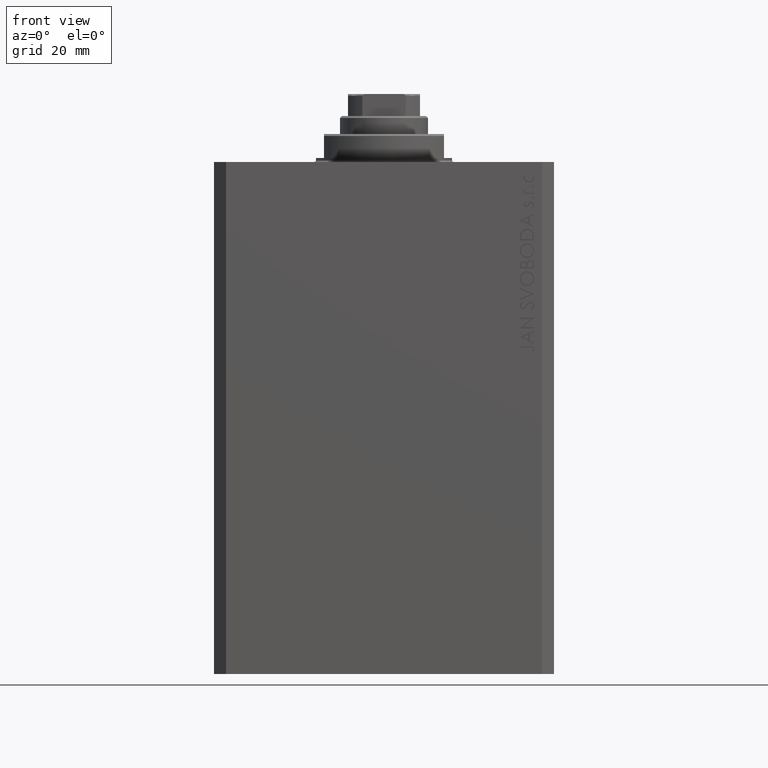
[diagram: clean part render]
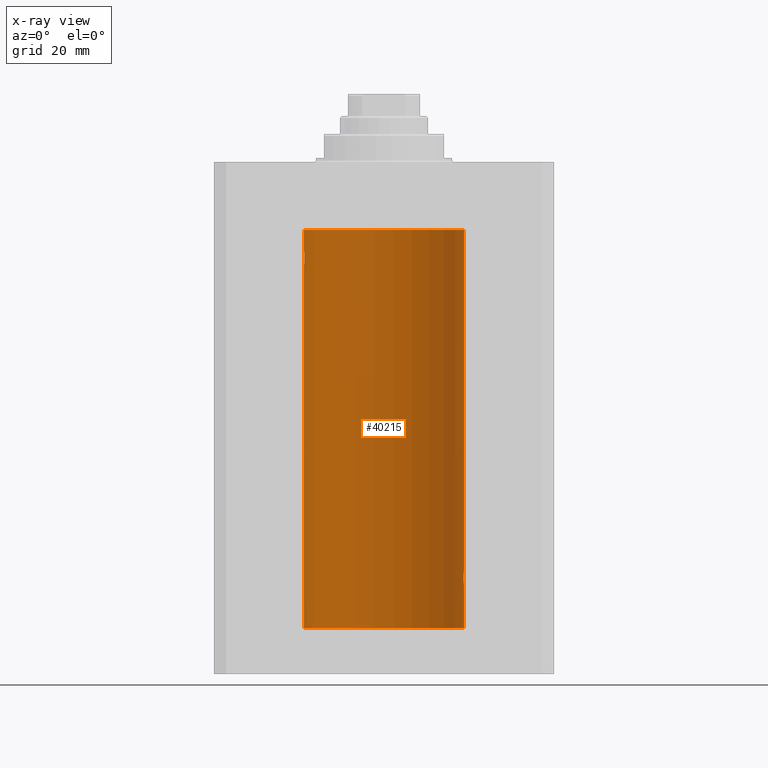
[diagram: x-ray — body ghosted, one internal face saturated and labeled with its STEP entity id]
A machine part, front view, then the same camera in x-ray: the body is ghosted and one INTERNAL B-rep face — a face not visible from any outside direction — is saturated and labeled: STEP entity #40215.
In plain terms, the highlighted cylindrical surface (partial cylindrical patch) has radius 20 mm, axis along (0, 0, 1).
Its self-contained STEP definition (entity closure, byte-faithful):
#26 = DIRECTION ( 'NONE',  ( -0.000000000000000000, -0.000000000000000000, 1.000000000000000000 ) ) ;
#36 = DIRECTION ( 'NONE',  ( -0.000000000000000000, -0.000000000000000000, 1.000000000000000000 ) ) ;
#178 = CARTESIAN_POINT ( 'NONE',  ( 20.00000000000000000, -1.553109350199128042E-23, -102.0000000000000142 ) ) ;
#252 = CARTESIAN_POINT ( 'NONE',  ( 19.89974874213236333, 2.000000000000336620, -104.0000000000000142 ) ) ;
#698 = CARTESIAN_POINT ( 'NONE',  ( 0.000000000000000000, 0.000000000000000000, -116.5999999999999943 ) ) ;
#1204 = CARTESIAN_POINT ( 'NONE',  ( -20.00000000000000000, 2.449293598294706513E-15, -116.5999999999999943 ) ) ;
#1322 = VECTOR ( 'NONE', #26, 1000.000000000000000 ) ;
#1610 = CARTESIAN_POINT ( 'NONE',  ( -19.90106552791689154, 1.987020435121076734, -24.26241417820002155 ) ) ;
#2384 = CARTESIAN_POINT ( 'NONE',  ( -20.00000000000000000, 2.449293598294706513E-15, -17.00000000000000000 ) ) ;
#4577 = ORIENTED_EDGE ( 'NONE', *, *, #26175, .T. ) ;
#4645 = EDGE_CURVE ( 'NONE', #10605, #12003, #43173, .T. ) ;
#4947 = CARTESIAN_POINT ( 'NONE',  ( -19.93679350243183990, 1.590453176650918676, -25.21960275349743696 ) ) ;
#5168 = LINE ( 'NONE', #23562, #15980 ) ;
#5183 = CARTESIAN_POINT ( 'NONE',  ( -20.00000000000000000, -1.269718202421245235E-16, -22.00000000000000000 ) ) ;
#5494 = CARTESIAN_POINT ( 'NONE',  ( 19.89974874213236689, 2.000000000000336620, -103.8694898374175750 ) ) ;
#5788 = EDGE_CURVE ( 'NONE', #38092, #40974, #5168, .T. ) ;
#5958 = CARTESIAN_POINT ( 'NONE',  ( 19.90611763847108762, 1.935753518394741635, -103.4804224343484833 ) ) ;
#5995 = DIRECTION ( 'NONE',  ( 0.000000000000000000, 0.000000000000000000, 1.000000000000000000 ) ) ;
#6024 = EDGE_CURVE ( 'NONE', #31686, #40974, #7582, .T. ) ;
#7169 = CARTESIAN_POINT ( 'NONE',  ( 20.00000000000000000, 0.000000000000000000, -116.5999999999999943 ) ) ;
#7582 = CIRCLE ( 'NONE', #45744, 20.00000000000000000 ) ;
#8071 = CARTESIAN_POINT ( 'NONE',  ( 19.95643710845398999, 1.322557776536547047, -105.5059384114668717 ) ) ;
#8516 = CARTESIAN_POINT ( 'NONE',  ( -19.92471474456649716, 1.735228749583835439, -25.00297226784954674 ) ) ;
#8756 = CARTESIAN_POINT ( 'NONE',  ( -19.95654117037011588, 1.321069663197671273, -25.50738641543989615 ) ) ;
#8995 = CARTESIAN_POINT ( 'NONE',  ( -19.99365919015135518, 0.5196544277756711683, -25.93573148867292133 ) ) ;
#9561 = AXIS2_PLACEMENT_3D ( 'NONE', #43187, #25046, #39613 ) ;
#10605 = VERTEX_POINT ( 'NONE', #13576 ) ;
#11041 = CARTESIAN_POINT ( 'NONE',  ( 20.00000000000000000, 0.000000000000000000, -17.00000000000000000 ) ) ;
#11285 = EDGE_CURVE ( 'NONE', #10605, #36383, #35862, .T. ) ;
#11340 = VERTEX_POINT ( 'NONE', #252 ) ;
#12003 = VERTEX_POINT ( 'NONE', #1204 ) ;
#12186 = VERTEX_POINT ( 'NONE', #178 ) ;
#12583 = CARTESIAN_POINT ( 'NONE',  ( -19.97510079925438475, 1.003547732426807171, -25.73489454601984150 ) ) ;
#12822 = CARTESIAN_POINT ( 'NONE',  ( -19.90610216711450420, 1.935912154109700190, -24.51899474186111050 ) ) ;
#13131 = CARTESIAN_POINT ( 'NONE',  ( 19.90980722176544049, 1.897923463361389285, -103.3557453536680839 ) ) ;
#13285 = CARTESIAN_POINT ( 'NONE',  ( -19.97517568592526160, 1.002099838626314909, -22.26423634872104884 ) ) ;
#13576 = CARTESIAN_POINT ( 'NONE',  ( 20.00000000000000000, 0.000000000000000000, -116.5999999999999943 ) ) ;
#14988 = CYLINDRICAL_SURFACE ( 'NONE', #9561, 20.00000000000000000 ) ;
#15891 = VECTOR ( 'NONE', #36, 1000.000000000000000 ) ;
#15980 = VECTOR ( 'NONE', #38129, 1000.000000000000000 ) ;
#16031 = ORIENTED_EDGE ( 'NONE', *, *, #46399, .T. ) ;
#16165 = CARTESIAN_POINT ( 'NONE',  ( -19.90978941500366872, 1.898109641280506521, -24.64371130639850804 ) ) ;
#16477 = CARTESIAN_POINT ( 'NONE',  ( 19.89974874213236333, 2.000000000000336620, -104.0000000000000142 ) ) ;
#16593 = CARTESIAN_POINT ( 'NONE',  ( -20.00000000000000000, -1.269718202421245235E-16, -22.00000000000000000 ) ) ;
#16864 = CARTESIAN_POINT ( 'NONE',  ( -19.99999999999999645, 0.1322335637814733289, -21.99999999999999645 ) ) ;
#17410 = CARTESIAN_POINT ( 'NONE',  ( 19.99366205580918887, 0.5195372307044503479, -102.0642390655580698 ) ) ;
#18008 = B_SPLINE_CURVE_WITH_KNOTS ( 'NONE', 3,
 ( #26005, #18843, #40570, #22194, #21964, #32938, #44617, #22895, #8071, #44381, #40797, #22659, #37457, #16477 ),
 .UNSPECIFIED., .F., .F.,
 ( 4, 2, 2, 2, 2, 2, 4 ),
 ( 1.911692756536875168E-18, 0.0003911418372936038769, 0.0007822836745872059107, 0.001173425511880807782, 0.001564567349174409870, 0.002346851023761584772, 0.003129134698348759892 ),
 .UNSPECIFIED. ) ;
#18140 = DIRECTION ( 'NONE',  ( 0.000000000000000000, 0.000000000000000000, 1.000000000000000000 ) ) ;
#18843 = CARTESIAN_POINT ( 'NONE',  ( 20.00000000000000000, 0.1322642052205942886, -106.0000000000000426 ) ) ;
#19752 = CARTESIAN_POINT ( 'NONE',  ( -19.92373272380676497, 1.747830109444745927, -22.99354240926169624 ) ) ;
#20062 = CARTESIAN_POINT ( 'NONE',  ( 19.98998987637478209, 0.6441982143731844745, -102.1020565463988845 ) ) ;
#20297 = CARTESIAN_POINT ( 'NONE',  ( 19.90107458412648711, 1.986930174329755161, -103.7369201394179186 ) ) ;
#21964 = CARTESIAN_POINT ( 'NONE',  ( 19.98995738555794688, 0.6452086089795042723, -105.8976034536015902 ) ) ;
#22194 = CARTESIAN_POINT ( 'NONE',  ( 19.99369727434158506, 0.5181068333511539281, -105.9361228828299488 ) ) ;
#22659 = CARTESIAN_POINT ( 'NONE',  ( 19.90520750556430229, 1.947496194184494378, -104.5245541699345608 ) ) ;
#22895 = CARTESIAN_POINT ( 'NONE',  ( 19.96307037068151757, 1.219701915132744841, -105.5904134935036325 ) ) ;
#23096 = CARTESIAN_POINT ( 'NONE',  ( -19.94330239452387232, 1.507796451871729504, -25.32060165083834136 ) ) ;
#23335 = CARTESIAN_POINT ( 'NONE',  ( -19.99370013622814568, 0.5179893069484621249, -22.06384771616670903 ) ) ;
#23562 = CARTESIAN_POINT ( 'NONE',  ( -20.00000000000000000, 2.449293598294706513E-15, -116.5999999999999943 ) ) ;
#23576 = CARTESIAN_POINT ( 'NONE',  ( -19.96304379627741454, 1.220099331833899736, -25.59007067689674386 ) ) ;
#23804 = CARTESIAN_POINT ( 'NONE',  ( -19.99999999999999645, 0.1305706983324449733, -25.99999999999998934 ) ) ;
#24379 = CARTESIAN_POINT ( 'NONE',  ( 0.000000000000000000, 0.000000000000000000, -17.00000000000000000 ) ) ;
#25046 = DIRECTION ( 'NONE',  ( -0.000000000000000000, -0.000000000000000000, 1.000000000000000000 ) ) ;
#25710 = DIRECTION ( 'NONE',  ( -0.000000000000000000, -0.000000000000000000, 1.000000000000000000 ) ) ;
#26005 = CARTESIAN_POINT ( 'NONE',  ( 20.00000000000000000, 1.967327733996653312E-15, -106.0000000000000142 ) ) ;
#26175 = EDGE_CURVE ( 'NONE', #12186, #31686, #40606, .T. ) ;
#26407 = AXIS2_PLACEMENT_3D ( 'NONE', #698, #18140, #40330 ) ;
#26580 = CARTESIAN_POINT ( 'NONE',  ( 19.97511131722831479, 1.003336743019912936, -102.2649856517438849 ) ) ;
#26639 = EDGE_LOOP ( 'NONE', ( #46782, #43718, #37540, #16031, #44924, #4577, #32849, #27425, #31637 ) ) ;
#26919 = CARTESIAN_POINT ( 'NONE',  ( -19.96308513509966787, 1.219458756546270672, -22.40940266542446935 ) ) ;
#27161 = CARTESIAN_POINT ( 'NONE',  ( -19.99867931558985745, 0.2631998640366461362, -25.98691292011447374 ) ) ;
#27425 = ORIENTED_EDGE ( 'NONE', *, *, #5788, .F. ) ;
#27473 = CARTESIAN_POINT ( 'NONE',  ( 20.00000000000000000, -1.553109350199128042E-23, -102.0000000000000142 ) ) ;
#27699 = CARTESIAN_POINT ( 'NONE',  ( 19.92473605353366040, 1.734984354167257159, -102.9966090588858947 ) ) ;
#30156 = VERTEX_POINT ( 'NONE', #38194 ) ;
#30502 = CARTESIAN_POINT ( 'NONE',  ( -19.95645382900617903, 1.322305185229311064, -22.49384229619286657 ) ) ;
#30744 = CARTESIAN_POINT ( 'NONE',  ( -19.89975827978156175, 1.999905101582726719, -23.73819846102561115 ) ) ;
#31054 = CARTESIAN_POINT ( 'NONE',  ( 20.00000000000000000, 0.1305404422160218736, -102.0000000000000000 ) ) ;
#31440 = CARTESIAN_POINT ( 'NONE',  ( -19.98998539619404013, 0.6443418861413118259, -25.89789687358865322 ) ) ;
#31637 = ORIENTED_EDGE ( 'NONE', *, *, #43407, .T. ) ;
#31686 = VERTEX_POINT ( 'NONE', #11041 ) ;
#32849 = ORIENTED_EDGE ( 'NONE', *, *, #6024, .T. ) ;
#32938 = CARTESIAN_POINT ( 'NONE',  ( 19.98066923111604964, 0.8874387315505228857, -105.7971214522024042 ) ) ;
#33140 = FACE_OUTER_BOUND ( 'NONE', #26639, .T. ) ;
#34318 = CARTESIAN_POINT ( 'NONE',  ( -19.98996196681220638, 0.6450624715427617506, -22.10234886833925572 ) ) ;
#34865 = CARTESIAN_POINT ( 'NONE',  ( 19.91911433329477177, 1.797615436563606561, -103.1135710607578062 ) ) ;
#35862 = LINE ( 'NONE', #7169, #1322 ) ;
#36310 = B_SPLINE_CURVE_WITH_KNOTS ( 'NONE', 3,
 ( #46068, #5494, #20297, #5958, #13131, #34865, #27699, #38678, #42253, #42024, #45615, #26580, #38444, #20062, #17410, #42483, #31054, #27473 ),
 .UNSPECIFIED., .F., .F.,
 ( 4, 2, 2, 2, 2, 2, 2, 2, 4 ),
 ( 0.003129134698348759892, 0.003520095305221480463, 0.003911055912094201469, 0.004302016518966922040, 0.004692977125839642612, 0.005083937732712363183, 0.005474898339585083755, 0.005865858946457804327, 0.006256819553330524898 ),
 .UNSPECIFIED. ) ;
#36383 = VERTEX_POINT ( 'NONE', #47083 ) ;
#36460 = CARTESIAN_POINT ( 'NONE',  ( -20.00000000000000000, 2.449293598294706513E-15, -116.5999999999999943 ) ) ;
#36555 = CARTESIAN_POINT ( 'NONE',  ( 20.00000000000000000, 0.000000000000000000, -116.5999999999999943 ) ) ;
#37457 = CARTESIAN_POINT ( 'NONE',  ( 19.89974874213236689, 2.000000000000336620, -104.2611413215582985 ) ) ;
#37540 = ORIENTED_EDGE ( 'NONE', *, *, #11285, .T. ) ;
#37664 = CARTESIAN_POINT ( 'NONE',  ( -19.98070694681040038, 0.8865903856744316025, -25.79753901127162763 ) ) ;
#37902 = CARTESIAN_POINT ( 'NONE',  ( -19.93684595445884611, 1.598854313793185655, -22.77049887769366521 ) ) ;
#38092 = VERTEX_POINT ( 'NONE', #16593 ) ;
#38129 = DIRECTION ( 'NONE',  ( -0.000000000000000000, -0.000000000000000000, 1.000000000000000000 ) ) ;
#38141 = CARTESIAN_POINT ( 'NONE',  ( -20.00000000000000000, 2.449293582768784389E-15, -25.99999999999999645 ) ) ;
#38194 = CARTESIAN_POINT ( 'NONE',  ( -20.00000000000000000, 2.449293582768784389E-15, -25.99999999999999645 ) ) ;
#38444 = CARTESIAN_POINT ( 'NONE',  ( 19.98071536551674754, 0.8863972468204365240, -102.2023680539948458 ) ) ;
#38602 = CARTESIAN_POINT ( 'NONE',  ( -19.99868965376115071, 0.2622407139811102628, -22.01298505384673732 ) ) ;
#38678 = CARTESIAN_POINT ( 'NONE',  ( 19.93681418096177183, 1.590194273034202688, -102.7800630082155351 ) ) ;
#39613 = DIRECTION ( 'NONE',  ( 1.000000000000000000, 0.000000000000000000, 0.000000000000000000 ) ) ;
#40003 = VECTOR ( 'NONE', #25710, 1000.000000000000000 ) ;
#40041 = LINE ( 'NONE', #36460, #40003 ) ;
#40215 = ADVANCED_FACE ( 'NONE', ( #33140 ), #14988, .F. ) ;
#40330 = DIRECTION ( 'NONE',  ( 1.000000000000000000, 0.000000000000000000, 0.000000000000000000 ) ) ;
#40570 = CARTESIAN_POINT ( 'NONE',  ( 19.99868904672146641, 0.2623009746877876802, -105.9870089850981287 ) ) ;
#40606 = LINE ( 'NONE', #36555, #15891 ) ;
#40797 = CARTESIAN_POINT ( 'NONE',  ( 19.92371056170336274, 1.748080295468898537, -105.0060386593724928 ) ) ;
#40974 = VERTEX_POINT ( 'NONE', #2384 ) ;
#41716 = CARTESIAN_POINT ( 'NONE',  ( -19.98067755938510714, 0.8872481584516758168, -22.20278656943303375 ) ) ;
#41945 = CARTESIAN_POINT ( 'NONE',  ( -19.91909332229799290, 1.797847595792767317, -24.88596189455837759 ) ) ;
#42024 = CARTESIAN_POINT ( 'NONE',  ( 19.95655800881796083, 1.320814917468111194, -102.4923930935969594 ) ) ;
#42077 = B_SPLINE_CURVE_WITH_KNOTS ( 'NONE', 3,
 ( #5183, #16864, #38602, #23335, #34318, #41716, #13285, #26919, #30502, #37902, #19752, #42177, #30744, #45295, #1610, #12822, #16165, #41945, #8516, #4947, #23096, #8756, #23576, #12583, #37664, #31440, #8995, #27161, #23804, #38141 ),
 .UNSPECIFIED., .F., .F.,
 ( 4, 2, 2, 2, 2, 2, 2, 2, 2, 2, 2, 2, 2, 2, 4 ),
 ( 1.233811249882840126E-19, 0.0003910512220831129202, 0.0007821024441662257319, 0.001173153666249338381, 0.001564204888332450813, 0.002346307332498675461, 0.003128409776664900326, 0.003519460998748018179, 0.003910512220831135165, 0.004301563442914253452, 0.004692614664997370871, 0.005083665887080488291, 0.005474717109163606578, 0.005865768331246723997, 0.006256819553329842284 ),
 .UNSPECIFIED. ) ;
#42177 = CARTESIAN_POINT ( 'NONE',  ( -19.90522393307484705, 1.947330458682957177, -23.47486091545001941 ) ) ;
#42253 = CARTESIAN_POINT ( 'NONE',  ( 19.94332236886613074, 1.507531922383789524, -102.6790994990407313 ) ) ;
#42483 = CARTESIAN_POINT ( 'NONE',  ( 19.99867993937906618, 0.2631387813862826053, -102.0130809500309681 ) ) ;
#43173 = CIRCLE ( 'NONE', #26407, 20.00000000000000000 ) ;
#43187 = CARTESIAN_POINT ( 'NONE',  ( 0.000000000000000000, 0.000000000000000000, -116.5999999999999943 ) ) ;
#43407 = EDGE_CURVE ( 'NONE', #38092, #30156, #42077, .T. ) ;
#43718 = ORIENTED_EDGE ( 'NONE', *, *, #4645, .F. ) ;
#44381 = CARTESIAN_POINT ( 'NONE',  ( 19.93682487288204541, 1.599118048130817149, -105.2291703518122006 ) ) ;
#44545 = EDGE_CURVE ( 'NONE', #11340, #12186, #36310, .T. ) ;
#44617 = CARTESIAN_POINT ( 'NONE',  ( 19.97516523393783316, 1.002309963754524524, -105.7356447155611079 ) ) ;
#44924 = ORIENTED_EDGE ( 'NONE', *, *, #44545, .T. ) ;
#44987 = DIRECTION ( 'NONE',  ( 1.000000000000000000, 0.000000000000000000, 0.000000000000000000 ) ) ;
#45295 = CARTESIAN_POINT ( 'NONE',  ( -19.89974399317116394, 2.000047251570890250, -24.12981181290706445 ) ) ;
#45615 = CARTESIAN_POINT ( 'NONE',  ( 19.96305842179988588, 1.219858681717333138, -102.4097471253956400 ) ) ;
#45744 = AXIS2_PLACEMENT_3D ( 'NONE', #24379, #5995, #44987 ) ;
#45860 = EDGE_CURVE ( 'NONE', #12003, #30156, #40041, .T. ) ;
#46068 = CARTESIAN_POINT ( 'NONE',  ( 19.89974874213236333, 2.000000000000336620, -104.0000000000000142 ) ) ;
#46399 = EDGE_CURVE ( 'NONE', #36383, #11340, #18008, .T. ) ;
#46782 = ORIENTED_EDGE ( 'NONE', *, *, #45860, .F. ) ;
#47083 = CARTESIAN_POINT ( 'NONE',  ( 20.00000000000000000, 1.967327733996653312E-15, -106.0000000000000142 ) ) ;